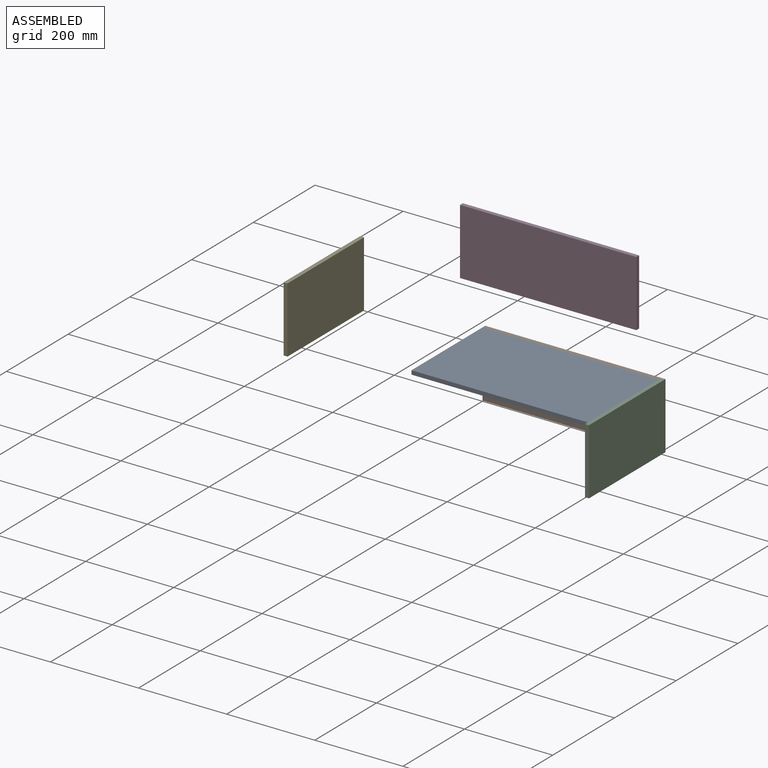
[diagram: assembled view]
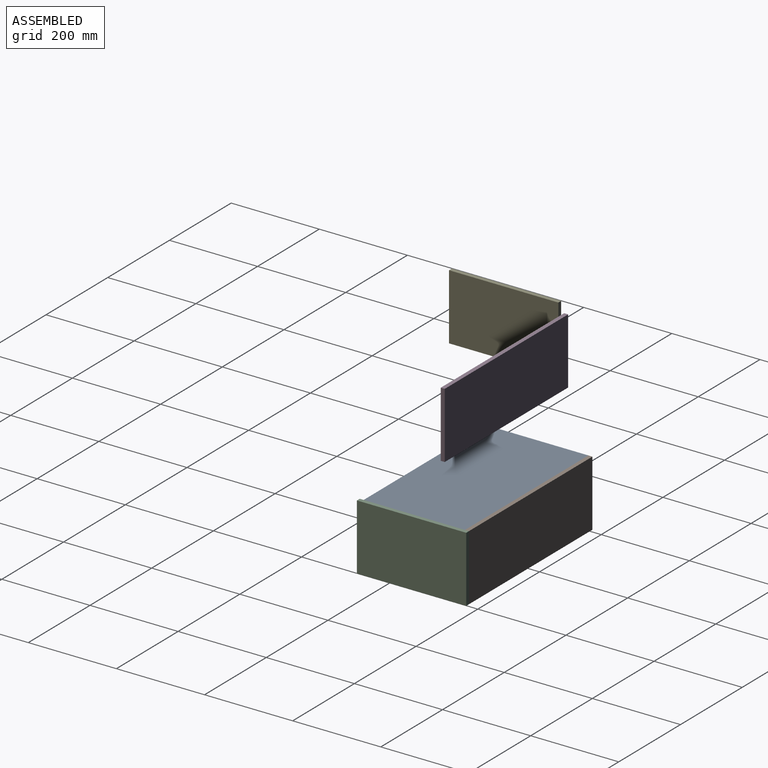
[diagram: assembled view, second angle]
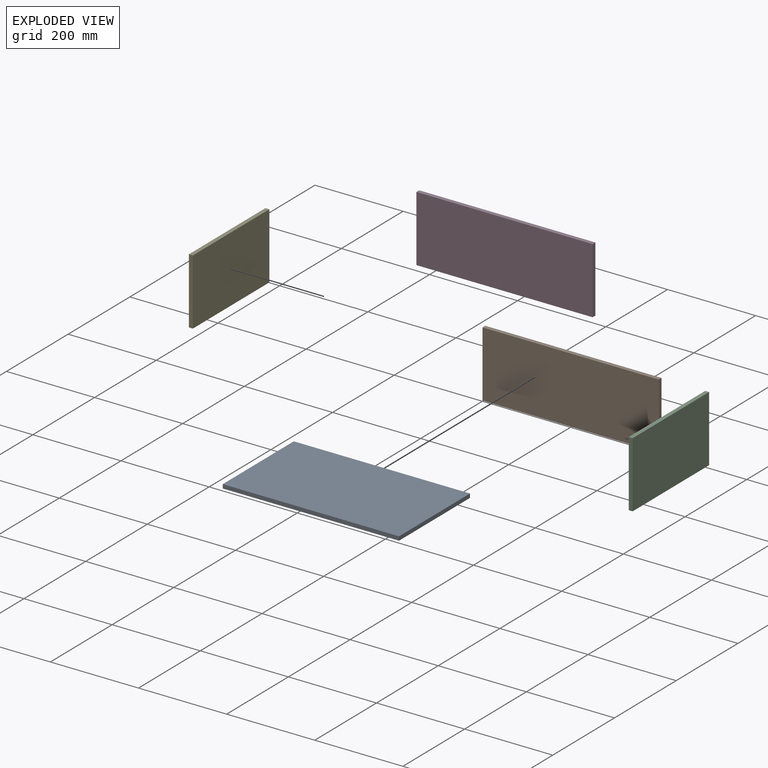
[diagram: exploded view]
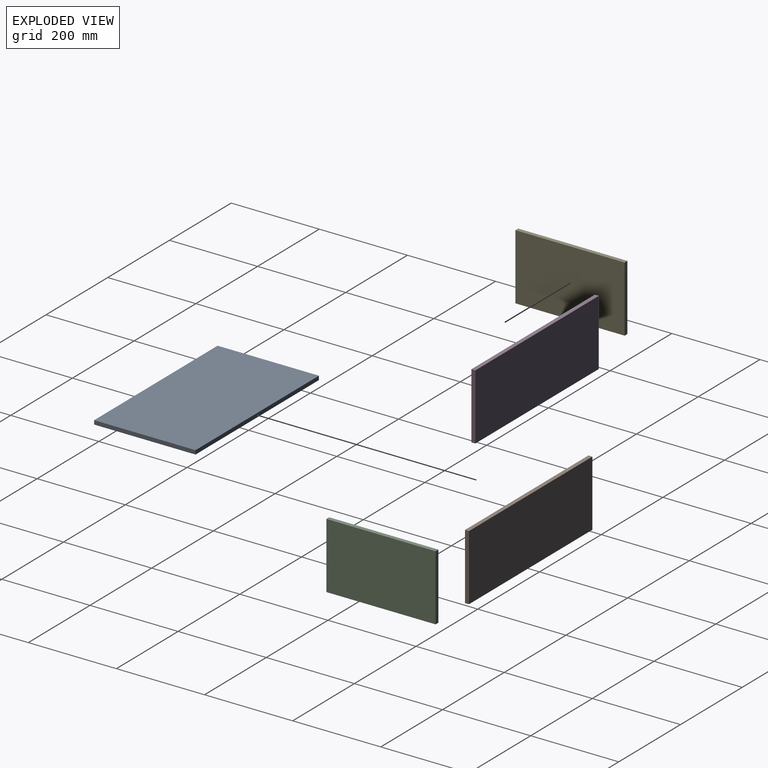
[diagram: exploded view, second angle]
ASSEMBLY  parts=5 mates=2
PART A: 6 faces, bbox 400x230x9 mm
  f0: plane 400x9mm, normal (0,1,0), area 3600mm2, adj f1,f3,f4,f5
  f1: plane 230x9mm, normal (-1,0,0), area 2070mm2, adj f0,f2,f4,f5
  f2: plane 400x9mm, normal (0,-1,0), area 3600mm2, adj f1,f3,f4,f5
  f3: plane 230x9mm, normal (1,0,0), area 2070mm2, adj f0,f2,f4,f5
  f4: plane 400x230mm, normal (0,0,1), area 92000mm2, adj f0,f1,f2,f3
  f5: plane 400x230mm, normal (0,0,-1), area 92000mm2, adj f0,f1,f2,f3
PART B: 6 faces, bbox 400x9x150 mm
  f0: plane 400x9mm, normal (0,0,-1), area 3600mm2, adj f1,f3,f4,f5
  f1: plane 150x9mm, normal (1,0,0), area 1350mm2, adj f0,f2,f4,f5
  f2: plane 400x9mm, normal (0,0,1), area 3600mm2, adj f1,f3,f4,f5
  f3: plane 150x9mm, normal (-1,0,0), area 1350mm2, adj f0,f2,f4,f5
  f4: plane 400x150mm, normal (0,-1,0), area 60000mm2, adj f0,f1,f2,f3
  f5: plane 400x150mm, normal (0,1,0), area 60000mm2, adj f0,f1,f2,f3
PART C: 6 faces, bbox 9x248x150 mm
  f0: plane 248x9mm, normal (0,0,-1), area 2232mm2, adj f1,f3,f4,f5
  f1: plane 150x9mm, normal (0,1,0), area 1350mm2, adj f0,f2,f4,f5
  f2: plane 248x9mm, normal (0,0,1), area 2232mm2, adj f1,f3,f4,f5
  f3: plane 150x9mm, normal (0,-1,0), area 1350mm2, adj f0,f2,f4,f5
  f4: plane 248x150mm, normal (1,0,0), area 37200mm2, adj f0,f1,f2,f3
  f5: plane 248x150mm, normal (-1,0,0), area 37200mm2, adj f0,f1,f2,f3
PART D: same geometry as B
PART E: same geometry as C
PLACE A rot(axis=(0,0,1),180deg) t=(13.77,65.73,-24.43)mm
PLACE B rot(axis=(0,0,1),180deg) t=(13.77,180.73,-90.43)mm
PLACE C t=(213.77,65.73,-90.43)mm
PLACE D t=(5.48,128.93,181.89)mm
PLACE E t=(-343.44,-115.36,120.49)mm
MATE fastened B.f3 <-> C.f5  axis (1,0,0) through (213.77,189.73,-15.43)mm
MATE fastened B.f5 <-> A.f2  axis (0,-1,0) through (213.77,180.73,-15.43)mm
